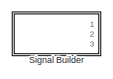
[diagram: root canvas - part 1/3, top left region]
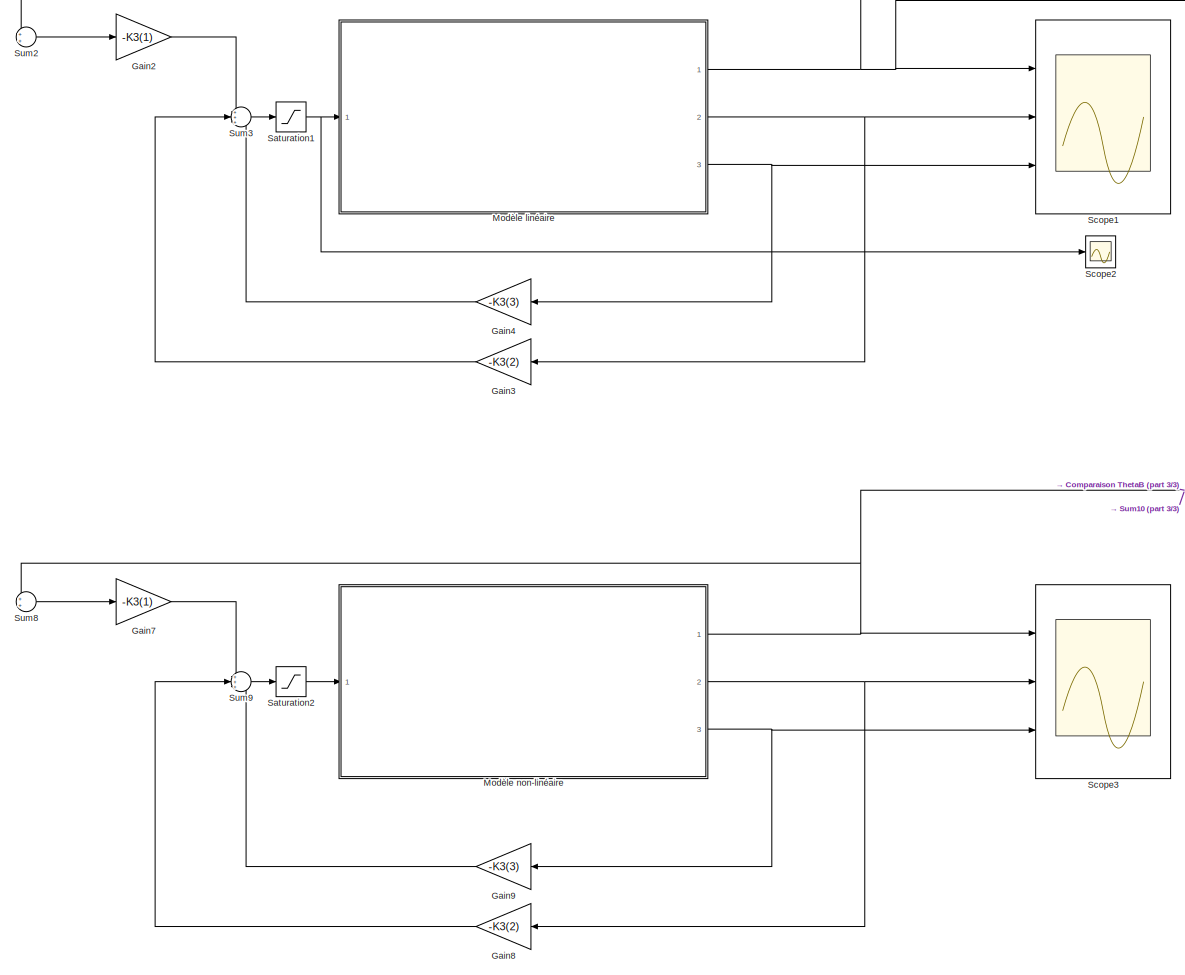
[diagram: root canvas - part 2/3, center side, full height]
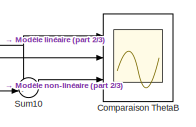
[diagram: root canvas - part 3/3, middle right region]
MODEL slx_f22af2a3f549
KIND model
CONFIG AbsTol = auto
CONFIG EnableMultiTasking = off
CONFIG FixedStep = auto
CONFIG MaxStep = auto
CONFIG MinStep = auto
CONFIG RelTol = 1e-4
CONFIG SampleTimeConstraint = Unconstrained
CONFIG Solver = VariableStepAuto
CONFIG SolverName = VariableStepAuto
CONFIG StartTime = 0.0
CONFIG StopTime = 1
BLOCK [Scope] Comparaison ThetaB 
  Floating = off
  NumInputPorts = 3
  Ports = [3]
  ScopeSpecificationString = Simulink.scopes.TimeScopeBlockCfg('CurrentConfiguration', extmgr.ConfigurationSet(extmgr.Configuration('Core','General UI',true),extmgr.Configuration('Core','Source UI',true),extmgr.Configuration('Sources','WiredSimulink',true,'DataLoggingVariableName','ScopeData4'),extmgr.Configuration('Visuals','Time Domain',true,'SerializedDisplays',{struct('MinYLimReal','-0.78878','MaxYLimReal','0.22653','YLab...<+2835ch>
BLOCK [Gain] Gain2
  Gain = -K3(1)
  OutDataTypeStr = Inherit: Inherit via internal rule
  ParamDataTypeStr = Inherit: Inherit via internal rule
  SaturateOnIntegerOverflow = off
BLOCK [Gain] Gain3
  Gain = -K3(2)
  OutDataTypeStr = Inherit: Inherit via internal rule
  ParamDataTypeStr = Inherit: Inherit via internal rule
  SaturateOnIntegerOverflow = off
BLOCK [Gain] Gain4
  Gain = -K3(3)
  OutDataTypeStr = Inherit: Inherit via internal rule
  ParamDataTypeStr = Inherit: Inherit via internal rule
  SaturateOnIntegerOverflow = off
BLOCK [Gain] Gain7
  Gain = -K3(1)
  OutDataTypeStr = Inherit: Inherit via internal rule
  ParamDataTypeStr = Inherit: Inherit via internal rule
  SaturateOnIntegerOverflow = off
BLOCK [Gain] Gain8
  Gain = -K3(2)
  OutDataTypeStr = Inherit: Inherit via internal rule
  ParamDataTypeStr = Inherit: Inherit via internal rule
  SaturateOnIntegerOverflow = off
BLOCK [Gain] Gain9
  Gain = -K3(3)
  OutDataTypeStr = Inherit: Inherit via internal rule
  ParamDataTypeStr = Inherit: Inherit via internal rule
  SaturateOnIntegerOverflow = off
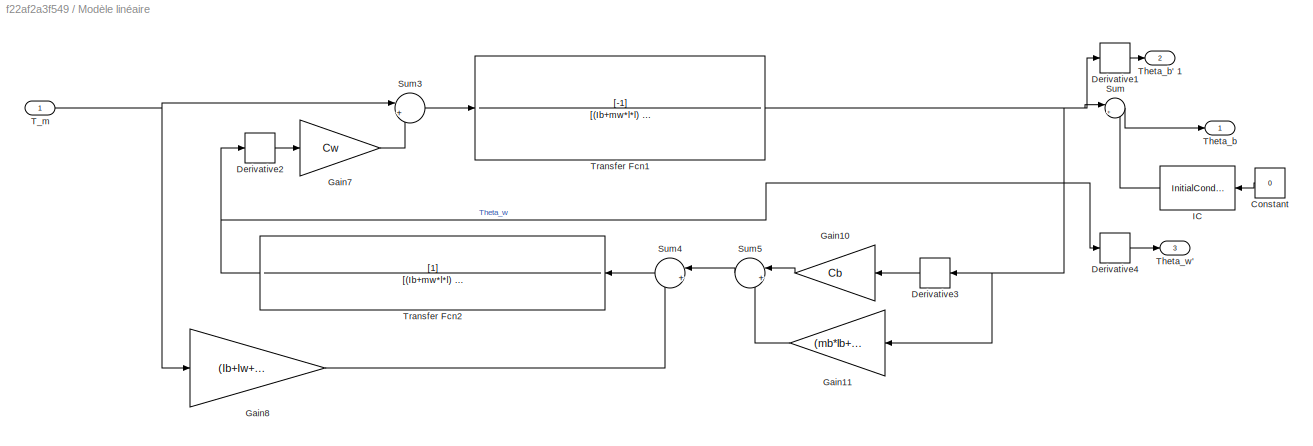
BLOCK [SubSystem] Modèle linéaire
  Ports = [1, 3]
  RequestExecContextInheritance = off
BLOCK [Constant] Modèle linéaire/Constant
  Value = 0
BLOCK [Derivative] Modèle linéaire/Derivative1
BLOCK [Derivative] Modèle linéaire/Derivative2
BLOCK [Derivative] Modèle linéaire/Derivative3
BLOCK [Derivative] Modèle linéaire/Derivative4
BLOCK [Gain] Modèle linéaire/Gain10
  Gain = Cb
  OutDataTypeStr = Inherit: Inherit via internal rule
  ParamDataTypeStr = Inherit: Inherit via internal rule
  SaturateOnIntegerOverflow = off
BLOCK [Gain] Modèle linéaire/Gain11
  Gain = (mb*lb+mw*l)*g
  OutDataTypeStr = Inherit: Inherit via internal rule
  ParamDataTypeStr = Inherit: Inherit via internal rule
  SaturateOnIntegerOverflow = off
BLOCK [Gain] Modèle linéaire/Gain7
  Gain = Cw
  OutDataTypeStr = Inherit: Inherit via internal rule
  ParamDataTypeStr = Inherit: Inherit via internal rule
  SaturateOnIntegerOverflow = off
BLOCK [Gain] Modèle linéaire/Gain8
  Gain = (Ib+Iw+mw*l*l)/Iw
  OutDataTypeStr = Inherit: Inherit via internal rule
  ParamDataTypeStr = Inherit: Inherit via internal rule
  SaturateOnIntegerOverflow = off
BLOCK [InitialCondition] Modèle linéaire/IC
  Value = Theta_b_ini
BLOCK [Sum] Modèle linéaire/Sum
  IconShape = round
  InputSameDT = off
  Inputs = |++
  OutDataTypeStr = Inherit: Inherit via internal rule
  Ports = [2, 1]
  SaturateOnIntegerOverflow = off
BLOCK [Sum] Modèle linéaire/Sum3
  IconShape = round
  InputSameDT = off
  Inputs = |+-
  OutDataTypeStr = Inherit: Inherit via internal rule
  Ports = [2, 1]
  SaturateOnIntegerOverflow = off
BLOCK [Sum] Modèle linéaire/Sum4
  IconShape = round
  InputSameDT = off
  Inputs = |++
  OutDataTypeStr = Inherit: Inherit via internal rule
  Ports = [2, 1]
  SaturateOnIntegerOverflow = off
BLOCK [Sum] Modèle linéaire/Sum5
  IconShape = round
  InputSameDT = off
  Inputs = |+-
  OutDataTypeStr = Inherit: Inherit via internal rule
  Ports = [2, 1]
  SaturateOnIntegerOverflow = off
BLOCK [Inport] Modèle linéaire/T_m 
  IconDisplay = Port number
BLOCK [Outport] Modèle linéaire/Theta_b 
  IconDisplay = Port number
BLOCK [Outport] Modèle linéaire/Theta_b' 1
  IconDisplay = Port number
  Port = 2
BLOCK [Outport] Modèle linéaire/Theta_w'
  IconDisplay = Port number
  Port = 3
BLOCK [TransferFcn] Modèle linéaire/Transfer Fcn1
  ContinuousStateAttributes = "Theta_b_ini"
  Denominator = [(Ib+mw*l*l)  Cb  -(mb*lb+mw*l)*g]
  Numerator = [-1]
BLOCK [TransferFcn] Modèle linéaire/Transfer Fcn2
  Denominator = [(Ib+mw*l*l)  ((Ib+Iw+mw*l*l)*Cw/Iw)  0]
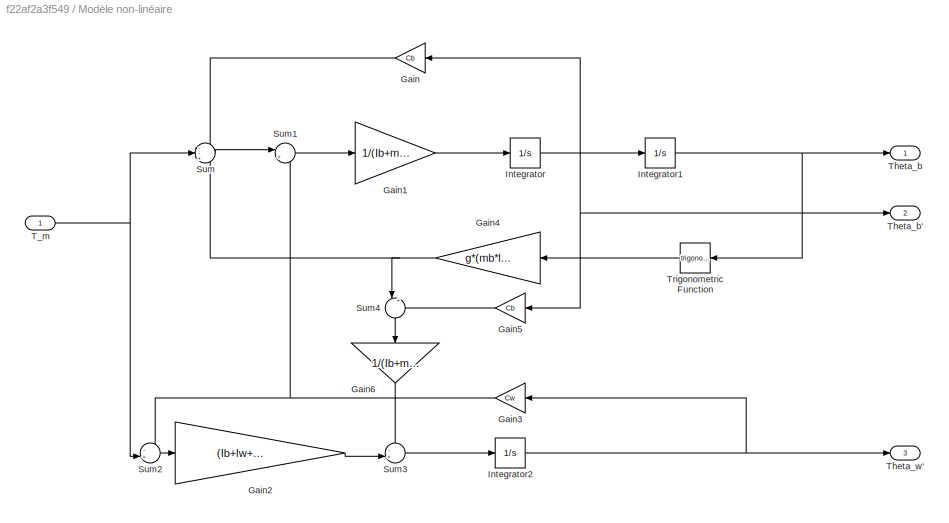
BLOCK [SubSystem] Modèle non-linéaire 
  Ports = [1, 3]
  RequestExecContextInheritance = off
BLOCK [Gain] Modèle non-linéaire /Gain
  Gain = Cb
  OutDataTypeStr = Inherit: Inherit via internal rule
  ParamDataTypeStr = Inherit: Inherit via internal rule
  SaturateOnIntegerOverflow = off
BLOCK [Gain] Modèle non-linéaire /Gain1
  Gain = 1/(Ib+mw*l*l)
  OutDataTypeStr = Inherit: Inherit via internal rule
  ParamDataTypeStr = Inherit: Inherit via internal rule
  SaturateOnIntegerOverflow = off
BLOCK [Gain] Modèle non-linéaire /Gain2
  Gain = (Ib+Iw+mw*l*l)/(Iw*(Ib+mw*l*l))
  OutDataTypeStr = Inherit: Inherit via internal rule
  ParamDataTypeStr = Inherit: Inherit via internal rule
  SaturateOnIntegerOverflow = off
BLOCK [Gain] Modèle non-linéaire /Gain3
  Gain = Cw
  OutDataTypeStr = Inherit: Inherit via internal rule
  ParamDataTypeStr = Inherit: Inherit via internal rule
  SaturateOnIntegerOverflow = off
BLOCK [Gain] Modèle non-linéaire /Gain4
  Gain = g*(mb*lb+mw*l)
  OutDataTypeStr = Inherit: Inherit via internal rule
  ParamDataTypeStr = Inherit: Inherit via internal rule
  SaturateOnIntegerOverflow = off
BLOCK [Gain] Modèle non-linéaire /Gain5
  Gain = Cb
  OutDataTypeStr = Inherit: Inherit via internal rule
  ParamDataTypeStr = Inherit: Inherit via internal rule
  SaturateOnIntegerOverflow = off
BLOCK [Gain] Modèle non-linéaire /Gain6
  Gain = 1/(Ib+mw*l*l)
  OutDataTypeStr = Inherit: Inherit via internal rule
  ParamDataTypeStr = Inherit: Inherit via internal rule
  SaturateOnIntegerOverflow = off
BLOCK [Integrator] Modèle non-linéaire /Integrator
  Ports = [1, 1]
BLOCK [Integrator] Modèle non-linéaire /Integrator1
  InitialCondition = Theta_b_ini
  Ports = [1, 1]
BLOCK [Integrator] Modèle non-linéaire /Integrator2
  Ports = [1, 1]
BLOCK [Sum] Modèle non-linéaire /Sum
  IconShape = round
  InputSameDT = off
  Inputs = --+
  OutDataTypeStr = Inherit: Inherit via internal rule
  Ports = [3, 1]
  SaturateOnIntegerOverflow = off
BLOCK [Sum] Modèle non-linéaire /Sum1
  IconShape = round
  InputSameDT = off
  Inputs = |++
  OutDataTypeStr = Inherit: Inherit via internal rule
  Ports = [2, 1]
  SaturateOnIntegerOverflow = off
BLOCK [Sum] Modèle non-linéaire /Sum2
  IconShape = round
  InputSameDT = off
  Inputs = -+|
  OutDataTypeStr = Inherit: Inherit via internal rule
  Ports = [2, 1]
  SaturateOnIntegerOverflow = off
BLOCK [Sum] Modèle non-linéaire /Sum3
  IconShape = round
  InputSameDT = off
  Inputs = -+|
  OutDataTypeStr = Inherit: Inherit via internal rule
  Ports = [2, 1]
  SaturateOnIntegerOverflow = off
BLOCK [Sum] Modèle non-linéaire /Sum4
  IconShape = round
  InputSameDT = off
  Inputs = |+-
  OutDataTypeStr = Inherit: Inherit via internal rule
  Ports = [2, 1]
  SaturateOnIntegerOverflow = off
BLOCK [Inport] Modèle non-linéaire /T_m 
  IconDisplay = Port number
BLOCK [Outport] Modèle non-linéaire /Theta_b 
  IconDisplay = Port number
BLOCK [Outport] Modèle non-linéaire /Theta_b' 
  IconDisplay = Port number
  Port = 2
BLOCK [Outport] Modèle non-linéaire /Theta_w'
  IconDisplay = Port number
  Port = 3
BLOCK [Trigonometry] Modèle non-linéaire /Trigonometric Function
  Ports = [1, 1]
BLOCK [Saturate] Saturation1
  InputPortMap = u0
  LowerLimit = -Tm_sat
  Ports = [1, 1]
  UpperLimit = Tm_sat
BLOCK [Saturate] Saturation2
  InputPortMap = u0
  LowerLimit = -Tm_sat
  Ports = [1, 1]
  UpperLimit = Tm_sat
BLOCK [Scope] Scope1
  Floating = off
  NumInputPorts = 3
  Ports = [3]
  ScopeSpecificationString = Simulink.scopes.TimeScopeBlockCfg('CurrentConfiguration', extmgr.ConfigurationSet(extmgr.Configuration('Core','General UI',true),extmgr.Configuration('Core','Source UI',true),extmgr.Configuration('Sources','WiredSimulink',true),extmgr.Configuration('Visuals','Time Domain',true,'SerializedDisplays',{struct('MinYLimReal','-0.01563','MaxYLimReal','0.14063','YLabelReal','','MinYLimMag','0.00000','MaxY...<+2783ch>
BLOCK [Scope] Scope2
  Floating = off
  NumInputPorts = 1
  Ports = [1]
  ScopeSpecificationString = Simulink.scopes.TimeScopeBlockCfg('CurrentConfiguration', extmgr.ConfigurationSet(extmgr.Configuration('Core','General UI',true),extmgr.Configuration('Core','Source UI',true),extmgr.Configuration('Sources','WiredSimulink',true,'DataLoggingVariableName','ScopeData1'),extmgr.Configuration('Visuals','Time Domain',true,'SerializedDisplays',{struct('MinYLimReal','-0.25','MaxYLimReal','0.25','YLabelReal...<+1398ch>
BLOCK [Scope] Scope3
  Floating = off
  NumInputPorts = 3
  Ports = [3]
  ScopeSpecificationString = Simulink.scopes.TimeScopeBlockCfg('CurrentConfiguration', extmgr.ConfigurationSet(extmgr.Configuration('Core','General UI',true),extmgr.Configuration('Core','Source UI',true),extmgr.Configuration('Sources','WiredSimulink',true,'DataLoggingVariableName','ScopeData2'),extmgr.Configuration('Visuals','Time Domain',true,'SerializedDisplays',{struct('MinYLimReal','-0.62332','MaxYLimReal','0.95815','YLab...<+2771ch>
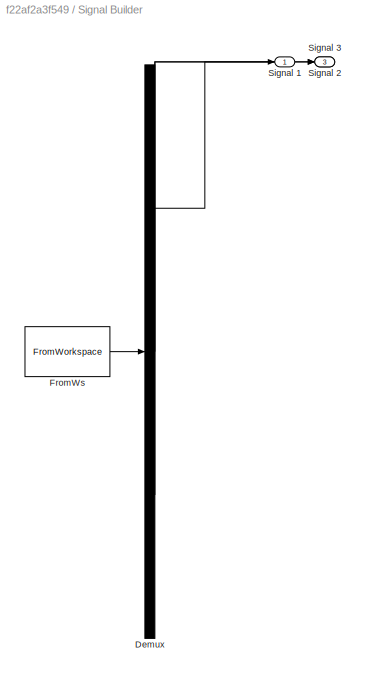
BLOCK [SubSystem] Signal Builder
  ClipboardFcn = sigbuilder_block('clipboard');
  CloseFcn = sigbuilder_block('close');
  ContinueFcn = sigbuilder_block('continue');
  CopyFcn = sigbuilder_block('copy');
  DeleteFcn = sigbuilder_block('delete');
  LoadFcn = sigbuilder_block('load');
  MaskHideContents = on
  ModelCloseFcn = sigbuilder_block('modelClose');
  NameChangeFcn = sigbuilder_block('namechange');
  OpenFcn = sigbuilder_block('open',[6 30 1248 660 ]);
  PauseFcn = sigbuilder_block('pause');
  Ports = [0, 3]
  PreSaveFcn = sigbuilder_block('preSave');
  RequestExecContextInheritance = off
  StartFcn = sigbuilder_block('start');
  StopFcn = sigbuilder_block('stop');
  Tag = STV Subsys
BLOCK [Demux] Signal Builder/Demux
  Outputs = 3
  Ports = [1, 3]
  Tag = STV Demux
BLOCK [FromWorkspace] Signal Builder/FromWs
  SampleTime = 0
  Tag = STV FromWs
  VariableName = tuvar
  ZeroCross = on
BLOCK [Outport] Signal Builder/Signal 1
  IconDisplay = Port number
  Tag = STV Outport
BLOCK [Outport] Signal Builder/Signal 2
  IconDisplay = Port number
  Port = 2
  Tag = STV Outport
BLOCK [Outport] Signal Builder/Signal 3
  IconDisplay = Port number
  Port = 3
  Tag = STV Outport
BLOCK [Sum] Sum10
  IconShape = round
  InputSameDT = off
  Inputs = +-|
  OutDataTypeStr = Inherit: Inherit via internal rule
  Ports = [2, 1]
  SaturateOnIntegerOverflow = off
BLOCK [Sum] Sum2
  IconShape = round
  InputSameDT = off
  Inputs = ++|
  OutDataTypeStr = Inherit: Inherit via internal rule
  Ports = [2, 1]
  SaturateOnIntegerOverflow = off
BLOCK [Sum] Sum3
  IconShape = round
  InputSameDT = off
  Inputs = +++
  OutDataTypeStr = Inherit: Inherit via internal rule
  Ports = [3, 1]
  SaturateOnIntegerOverflow = off
BLOCK [Sum] Sum8
  IconShape = round
  InputSameDT = off
  Inputs = ++|
  OutDataTypeStr = Inherit: Inherit via internal rule
  Ports = [2, 1]
  SaturateOnIntegerOverflow = off
BLOCK [Sum] Sum9
  IconShape = round
  InputSameDT = off
  Inputs = +++
  OutDataTypeStr = Inherit: Inherit via internal rule
  Ports = [3, 1]
  SaturateOnIntegerOverflow = off
LINE Gain2:1 -> Sum3:1
LINE Gain3:1 -> Sum3:2
LINE Gain4:1 -> Sum3:3
LINE Gain7:1 -> Sum9:1
LINE Gain8:1 -> Sum9:2
LINE Gain9:1 -> Sum9:3
LINE Modèle linéaire/Constant:1 -> Modèle linéaire/IC:1
LINE Modèle linéaire/Derivative1:1 -> Modèle linéaire/Theta_b' 1:1
LINE Modèle linéaire/Derivative2:1 -> Modèle linéaire/Gain7:1
LINE Modèle linéaire/Derivative3:1 -> Modèle linéaire/Gain10:1
LINE Modèle linéaire/Derivative4:1 -> Modèle linéaire/Theta_w':1
LINE Modèle linéaire/Gain10:1 -> Modèle linéaire/Sum5:1
LINE Modèle linéaire/Gain11:1 -> Modèle linéaire/Sum5:2
LINE Modèle linéaire/Gain7:1 -> Modèle linéaire/Sum3:2
LINE Modèle linéaire/Gain8:1 -> Modèle linéaire/Sum4:2
LINE Modèle linéaire/IC:1 -> Modèle linéaire/Sum:2
LINE Modèle linéaire/Sum3:1 -> Modèle linéaire/Transfer Fcn1:1
LINE Modèle linéaire/Sum4:1 -> Modèle linéaire/Transfer Fcn2:1
LINE Modèle linéaire/Sum5:1 -> Modèle linéaire/Sum4:1
LINE Modèle linéaire/Sum:1 -> Modèle linéaire/Theta_b :1
NET Modèle linéaire/T_m :1 -> Modèle linéaire/Gain8:1, Modèle linéaire/Sum3:1
NET Modèle linéaire/Transfer Fcn1:1 -> Modèle linéaire/Derivative1:1, Modèle linéaire/Derivative3:1, Modèle linéaire/Gain11:1, Modèle linéaire/Sum:1
NET Modèle linéaire/Transfer Fcn2:1 -> Modèle linéaire/Derivative2:1, Modèle linéaire/Derivative4:1
NET Modèle linéaire:1 -> Comparaison ThetaB :1, Scope1:1, Sum10:1, Sum2:1
NET Modèle linéaire:2 -> Gain3:1, Scope1:2
NET Modèle linéaire:3 -> Gain4:1, Scope1:3
LINE Modèle non-linéaire /Gain1:1 -> Modèle non-linéaire /Integrator:1
LINE Modèle non-linéaire /Gain2:1 -> Modèle non-linéaire /Sum3:2
NET Modèle non-linéaire /Gain3:1 -> Modèle non-linéaire /Sum1:2, Modèle non-linéaire /Sum2:1
NET Modèle non-linéaire /Gain4:1 -> Modèle non-linéaire /Sum4:1, Modèle non-linéaire /Sum:3
LINE Modèle non-linéaire /Gain5:1 -> Modèle non-linéaire /Sum4:2
LINE Modèle non-linéaire /Gain6:1 -> Modèle non-linéaire /Sum3:1
LINE Modèle non-linéaire /Gain:1 -> Modèle non-linéaire /Sum:1
NET Modèle non-linéaire /Integrator1:1 -> Modèle non-linéaire /Theta_b :1, Modèle non-linéaire /Trigonometric Function:1
NET Modèle non-linéaire /Integrator2:1 -> Modèle non-linéaire /Gain3:1, Modèle non-linéaire /Theta_w':1
NET Modèle non-linéaire /Integrator:1 -> Modèle non-linéaire /Gain5:1, Modèle non-linéaire /Gain:1, Modèle non-linéaire /Integrator1:1, Modèle non-linéaire /Theta_b' :1
LINE Modèle non-linéaire /Sum1:1 -> Modèle non-linéaire /Gain1:1
LINE Modèle non-linéaire /Sum2:1 -> Modèle non-linéaire /Gain2:1
LINE Modèle non-linéaire /Sum3:1 -> Modèle non-linéaire /Integrator2:1
LINE Modèle non-linéaire /Sum4:1 -> Modèle non-linéaire /Gain6:1
LINE Modèle non-linéaire /Sum:1 -> Modèle non-linéaire /Sum1:1
NET Modèle non-linéaire /T_m :1 -> Modèle non-linéaire /Sum2:2, Modèle non-linéaire /Sum:2
LINE Modèle non-linéaire /Trigonometric Function:1 -> Modèle non-linéaire /Gain4:1
NET Modèle non-linéaire :1 -> Comparaison ThetaB :2, Scope3:1, Sum10:2, Sum8:1
NET Modèle non-linéaire :2 -> Gain8:1, Scope3:2
NET Modèle non-linéaire :3 -> Gain9:1, Scope3:3
NET Saturation1:1 -> Modèle linéaire:1, Scope2:1
LINE Saturation2:1 -> Modèle non-linéaire :1
LINE Sum10:1 -> Comparaison ThetaB :3
LINE Sum2:1 -> Gain2:1
LINE Sum3:1 -> Saturation1:1
LINE Sum8:1 -> Gain7:1
LINE Sum9:1 -> Saturation2:1
note: NET lines group one-source signal fan-out (src -> all destinations, sorted); 1:1 wires keep LINE
